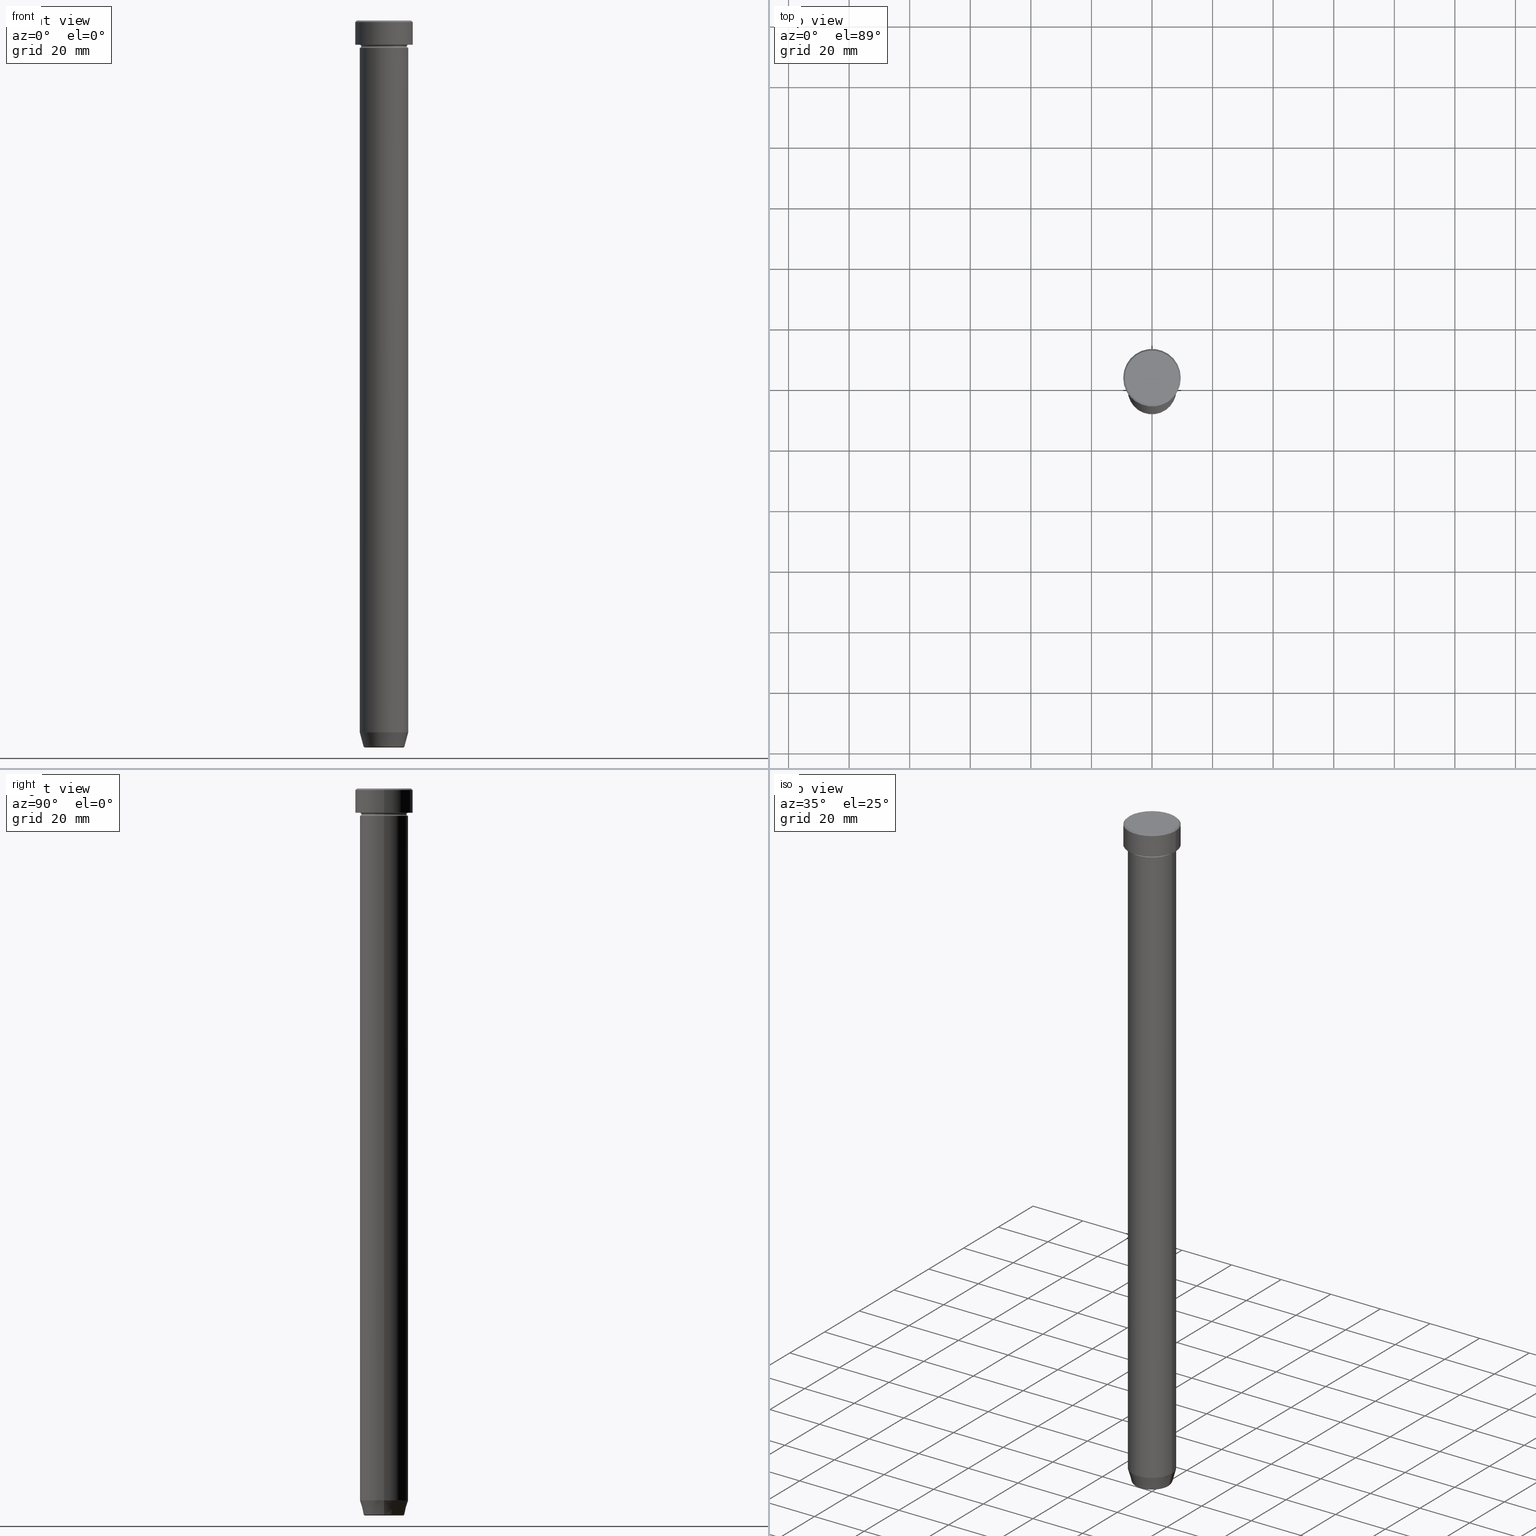
[diagram: canonical four-view strip — front | top / right | iso, engineering-drawing reading convention]
A machine part, canonical four-view strip (front | top / right | iso — engineering-drawing reading convention). The complete STEP part file that produces these views, byte-faithful:
ISO-10303-21;
HEADER;
FILE_DESCRIPTION (( 'STEP AP203' ),
    '1' );
FILE_NAME ('68c7.STEP',
    '2024-01-02T22:09:50',
    ( '' ),
    ( '' ),
    'SwSTEP 2.0',
    'SolidWorks 2019',
    '' );
FILE_SCHEMA (( 'CONFIG_CONTROL_DESIGN' ));
ENDSEC;

DATA;
#1 = VERTEX_POINT ( 'NONE', #226 ) ;
#2 = CC_DESIGN_APPROVAL ( #459, ( #292 ) ) ;
#3 = DIRECTION ( 'NONE',  ( 1.000000000000000000, 0.000000000000000000, 0.000000000000000000 ) ) ;
#4 = APPROVAL_ROLE ( '' ) ;
#5 = PLANE ( 'NONE',  #465 ) ;
#6 = CARTESIAN_POINT ( 'NONE',  ( 0.000000000000000000, 0.000000000000000000, 0.000000000000000000 ) ) ;
#7 = VERTEX_POINT ( 'NONE', #86 ) ;
#8 = DIRECTION ( 'NONE',  ( -0.000000000000000000, -0.000000000000000000, 1.000000000000000000 ) ) ;
#9 = DIRECTION ( 'NONE',  ( -0.000000000000000000, -1.000000000000000000, -0.000000000000000000 ) ) ;
#10 = CYLINDRICAL_SURFACE ( 'NONE', #85, 8.000000000000000000 ) ;
#11 = AXIS2_PLACEMENT_3D ( 'NONE', #394, #69, #343 ) ;
#12 = CIRCLE ( 'NONE', #361, 6.276590543854910997 ) ;
#13 = CARTESIAN_POINT ( 'NONE',  ( 9.000000000000001776, 1.132798289211301698E-15, 0.000000000000000000 ) ) ;
#14 = FACE_OUTER_BOUND ( 'NONE', #93, .T. ) ;
#15 = DIRECTION ( 'NONE',  ( -0.000000000000000000, -0.000000000000000000, 1.000000000000000000 ) ) ;
#16 = EDGE_LOOP ( 'NONE', ( #18, #34, #45, #541 ) ) ;
#17 = CARTESIAN_POINT ( 'NONE',  ( 6.276590543854910997, 0.000000000000000000, -240.0000000000000000 ) ) ;
#18 = ORIENTED_EDGE ( 'NONE', *, *, #358, .F. ) ;
#19 = DIRECTION ( 'NONE',  ( -0.000000000000000000, -0.000000000000000000, 1.000000000000000000 ) ) ;
#20 = CALENDAR_DATE ( 2024, 2, 1 ) ;
#21 = CC_DESIGN_PERSON_AND_ORGANIZATION_ASSIGNMENT ( #122, #31, ( #292 ) ) ;
#22 = CIRCLE ( 'NONE', #48, 0.5000000000000004441 ) ;
#23 = CARTESIAN_POINT ( 'NONE',  ( -9.500000000000000000, 1.163414459189985485E-15, -8.000000000000000000 ) ) ;
#24 = EDGE_CURVE ( 'NONE', #451, #228, #591, .T. ) ;
#25 = AXIS2_PLACEMENT_3D ( 'NONE', #513, #567, #335 ) ;
#26 = DIRECTION ( 'NONE',  ( -0.000000000000000000, -0.000000000000000000, 1.000000000000000000 ) ) ;
#27 = CIRCLE ( 'NONE', #277, 8.000000000000000000 ) ;
#28 = DIRECTION ( 'NONE',  ( -1.000000000000000000, 0.000000000000000000, 0.000000000000000000 ) ) ;
#29 = CARTESIAN_POINT ( 'NONE',  ( 0.000000000000000000, 2.326828918379971286E-14, -240.0000000000000000 ) ) ;
#30 = DIRECTION ( 'NONE',  ( -0.2588190451025202954, 3.169619151431758778E-17, 0.9659258262890684232 ) ) ;
#31 = PERSON_AND_ORGANIZATION_ROLE ( 'classification_officer' ) ;
#32 = CARTESIAN_POINT ( 'NONE',  ( 8.000000000000000000, 9.797174393178825657E-16, -8.000000000000000000 ) ) ;
#33 =( NAMED_UNIT ( * ) SI_UNIT ( $, .STERADIAN. ) SOLID_ANGLE_UNIT ( ) );
#34 = ORIENTED_EDGE ( 'NONE', *, *, #140, .F. ) ;
#35 = DIRECTION ( 'NONE',  ( 1.000000000000000000, 0.000000000000000000, 0.000000000000000000 ) ) ;
#36 = ADVANCED_FACE ( 'NONE', ( #263 ), #515, .F. ) ;
#37 = DIRECTION ( 'NONE',  ( -0.000000000000000000, -0.000000000000000000, 1.000000000000000000 ) ) ;
#38 = FACE_OUTER_BOUND ( 'NONE', #180, .T. ) ;
#39 = EDGE_LOOP ( 'NONE', ( #151, #416, #363, #597 ) ) ;
#40 = LINE ( 'NONE', #452, #414 ) ;
#41 = LOCAL_TIME ( 23, 9, 50.00000000000000000, #529 ) ;
#42 = PLANE ( 'NONE',  #545 ) ;
#43 = ORIENTED_EDGE ( 'NONE', *, *, #229, .F. ) ;
#44 = CARTESIAN_POINT ( 'NONE',  ( 0.000000000000000000, 0.000000000000000000, 0.000000000000000000 ) ) ;
#45 = ORIENTED_EDGE ( 'NONE', *, *, #422, .T. ) ;
#46 = PRODUCT_DEFINITION ( 'NEZN�M�', '', #322, #132 ) ;
#47 = VERTEX_POINT ( 'NONE', #32 ) ;
#48 = AXIS2_PLACEMENT_3D ( 'NONE', #204, #386, #520 ) ;
#49 = ADVANCED_BREP_SHAPE_REPRESENTATION ( '68c7', ( #123, #514, #521 ), #105 ) ;
#50 = DIRECTION ( 'NONE',  ( 0.000000000000000000, 0.000000000000000000, -1.000000000000000000 ) ) ;
#51 = AXIS2_PLACEMENT_3D ( 'NONE', #152, #516, #212 ) ;
#52 = TOROIDAL_SURFACE ( 'NONE', #484, 8.000000000000000000, 0.5000000000000000000 ) ;
#53 = ORIENTED_EDGE ( 'NONE', *, *, #342, .T. ) ;
#54 = CYLINDRICAL_SURFACE ( 'NONE', #71, 8.000000000000000000 ) ;
#55 = DIRECTION ( 'NONE',  ( 1.000000000000000000, 0.000000000000000000, 0.000000000000000000 ) ) ;
#56 = EDGE_LOOP ( 'NONE', ( #246, #143, #321, #43 ) ) ;
#57 = APPLICATION_PROTOCOL_DEFINITION ( 'international standard', 'config_control_design', 1994, #275 ) ;
#58 = VERTEX_POINT ( 'NONE', #304 ) ;
#59 = AXIS2_PLACEMENT_3D ( 'NONE', #280, #522, #339 ) ;
#60 = CARTESIAN_POINT ( 'NONE',  ( 0.000000000000000000, 0.000000000000000000, -240.0000000000000000 ) ) ;
#61 = APPROVAL_STATUS ( 'not_yet_approved' ) ;
#62 =( NAMED_UNIT ( * ) PLANE_ANGLE_UNIT ( ) SI_UNIT ( $, .RADIAN. ) );
#63 = EDGE_CURVE ( 'NONE', #200, #228, #40, .T. ) ;
#64 = CARTESIAN_POINT ( 'NONE',  ( -8.000000000000000000, 0.000000000000000000, -8.500000000000000000 ) ) ;
#65 = DIRECTION ( 'NONE',  ( 0.000000000000000000, 0.000000000000000000, -1.000000000000000000 ) ) ;
#66 = AXIS2_PLACEMENT_3D ( 'NONE', #289, #389, #383 ) ;
#67 = CARTESIAN_POINT ( 'NONE',  ( -8.000000000000000000, 9.797174393178825657E-16, -8.500000000000000000 ) ) ;
#68 = PRODUCT_DEFINITION_SHAPE ( 'NONE', 'NONE',  #46 ) ;
#69 = DIRECTION ( 'NONE',  ( -0.000000000000000000, -0.000000000000000000, 1.000000000000000000 ) ) ;
#70 = AXIS2_PLACEMENT_3D ( 'NONE', #396, #347, #261 ) ;
#71 = AXIS2_PLACEMENT_3D ( 'NONE', #186, #192, #188 ) ;
#72 = CARTESIAN_POINT ( 'NONE',  ( 8.000000000000000000, 0.000000000000000000, -22.00000000000000000 ) ) ;
#73 = EDGE_CURVE ( 'NONE', #7, #47, #75, .T. ) ;
#74 = CARTESIAN_POINT ( 'NONE',  ( 0.000000000000000000, 0.000000000000000000, 0.000000000000000000 ) ) ;
#75 = CIRCLE ( 'NONE', #206, 8.000000000000000000 ) ;
#76 = CARTESIAN_POINT ( 'NONE',  ( -6.660254037844388186, 8.156458788954364706E-16, -240.0000000000000000 ) ) ;
#77 = AXIS2_PLACEMENT_3D ( 'NONE', #365, #552, #96 ) ;
#78 = DIRECTION ( 'NONE',  ( 1.000000000000000000, 0.000000000000000000, 0.000000000000000000 ) ) ;
#79 = ORIENTED_EDGE ( 'NONE', *, *, #73, .F. ) ;
#80 = PRODUCT_RELATED_PRODUCT_CATEGORY ( 'detail', '', ( #395 ) ) ;
#81 = ORIENTED_EDGE ( 'NONE', *, *, #140, .T. ) ;
#82 = CARTESIAN_POINT ( 'NONE',  ( -9.500000000000000000, 1.163414459189985485E-15, -0.4999999999999968914 ) ) ;
#83 = EDGE_LOOP ( 'NONE', ( #81, #427 ) ) ;
#84 = DIRECTION ( 'NONE',  ( 1.000000000000000000, 0.000000000000000000, 0.000000000000000000 ) ) ;
#85 = AXIS2_PLACEMENT_3D ( 'NONE', #198, #15, #435 ) ;
#86 = CARTESIAN_POINT ( 'NONE',  ( -8.000000000000000000, 0.000000000000000000, -8.000000000000000000 ) ) ;
#87 = EDGE_CURVE ( 'NONE', #183, #565, #540, .T. ) ;
#88 = ORIENTED_EDGE ( 'NONE', *, *, #274, .T. ) ;
#89 = VERTEX_POINT ( 'NONE', #593 ) ;
#90 = DIRECTION ( 'NONE',  ( -1.000000000000000000, 0.000000000000000000, -0.000000000000000000 ) ) ;
#91 = ORIENTED_EDGE ( 'NONE', *, *, #415, .T. ) ;
#92 = DIRECTION ( 'NONE',  ( -0.000000000000000000, -0.000000000000000000, 1.000000000000000000 ) ) ;
#93 = EDGE_LOOP ( 'NONE', ( #536, #556 ) ) ;
#94 = AXIS2_PLACEMENT_3D ( 'NONE', #352, #538, #265 ) ;
#95 = EDGE_CURVE ( 'NONE', #89, #442, #295, .T. ) ;
#96 = DIRECTION ( 'NONE',  ( 1.000000000000000000, 0.000000000000000000, 0.000000000000000000 ) ) ;
#97 = ORIENTED_EDGE ( 'NONE', *, *, #319, .F. ) ;
#98 = CARTESIAN_POINT ( 'NONE',  ( -8.000000000000000000, 9.797174393178825657E-16, -22.00000000000000000 ) ) ;
#99 = PERSON_AND_ORGANIZATION ( #371, #182 ) ;
#100 = ORIENTED_EDGE ( 'NONE', *, *, #392, .T. ) ;
#101 = ADVANCED_FACE ( 'NONE', ( #14 ), #512, .T. ) ;
#102 = CC_DESIGN_PERSON_AND_ORGANIZATION_ASSIGNMENT ( #476, #208, ( #322 ) ) ;
#103 = AXIS2_PLACEMENT_3D ( 'NONE', #589, #586, #171 ) ;
#104 = CALENDAR_DATE ( 2024, 2, 1 ) ;
#105 =( GEOMETRIC_REPRESENTATION_CONTEXT ( 3 ) GLOBAL_UNCERTAINTY_ASSIGNED_CONTEXT ( ( #402 ) ) GLOBAL_UNIT_ASSIGNED_CONTEXT ( ( #189, #62, #33 ) ) REPRESENTATION_CONTEXT ( 'NONE', 'WORKASPACE' ) );
#106 = DIRECTION ( 'NONE',  ( -0.000000000000000000, -0.000000000000000000, 1.000000000000000000 ) ) ;
#107 = DIRECTION ( 'NONE',  ( 0.000000000000000000, -1.000000000000000000, 0.000000000000000000 ) ) ;
#108 = DIRECTION ( 'NONE',  ( -0.000000000000000000, -0.000000000000000000, 1.000000000000000000 ) ) ;
#109 = CARTESIAN_POINT ( 'NONE',  ( 0.000000000000000000, 0.000000000000000000, -8.000000000000000000 ) ) ;
#110 = ADVANCED_FACE ( 'NONE', ( #470 ), #356, .T. ) ;
#111 = EDGE_LOOP ( 'NONE', ( #425, #327, #432, #239 ) ) ;
#112 = CARTESIAN_POINT ( 'NONE',  ( 0.000000000000000000, 0.000000000000000000, -8.000000000000000000 ) ) ;
#113 = DIRECTION ( 'NONE',  ( -0.000000000000000000, -0.000000000000000000, 1.000000000000000000 ) ) ;
#114 = APPROVAL ( #283, 'NEUR�EN�' ) ;
#115 = DIRECTION ( 'NONE',  ( -0.000000000000000000, -0.000000000000000000, 1.000000000000000000 ) ) ;
#116 = AXIS2_PLACEMENT_3D ( 'NONE', #443, #37, #449 ) ;
#117 = AXIS2_PLACEMENT_3D ( 'NONE', #577, #92, #35 ) ;
#118 = FACE_OUTER_BOUND ( 'NONE', #333, .T. ) ;
#119 = DIRECTION ( 'NONE',  ( 1.000000000000000000, 0.000000000000000000, 0.000000000000000000 ) ) ;
#120 = CIRCLE ( 'NONE', #240, 6.276590543854910997 ) ;
#121 = LINE ( 'NONE', #590, #419 ) ;
#122 = PERSON_AND_ORGANIZATION ( #371, #182 ) ;
#123 = MANIFOLD_SOLID_BREP ( 'Zkosen�1', #317 ) ;
#124 = VECTOR ( 'NONE', #332, 1000.000000000000000 ) ;
#125 = AXIS2_PLACEMENT_3D ( 'NONE', #6, #367, #373 ) ;
#126 = DIRECTION ( 'NONE',  ( 1.000000000000000000, 0.000000000000000000, 0.000000000000000000 ) ) ;
#127 = VERTEX_POINT ( 'NONE', #72 ) ;
#128 = CARTESIAN_POINT ( 'NONE',  ( 0.000000000000000000, 0.000000000000000000, 0.000000000000000000 ) ) ;
#129 = CARTESIAN_POINT ( 'NONE',  ( 0.000000000000000000, 0.000000000000000000, -0.4999999999999968914 ) ) ;
#130 = DIRECTION ( 'NONE',  ( -0.000000000000000000, -0.000000000000000000, 1.000000000000000000 ) ) ;
#131 = CC_DESIGN_PERSON_AND_ORGANIZATION_ASSIGNMENT ( #169, #527, ( #322 ) ) ;
#132 = DESIGN_CONTEXT ( 'detailed design', #168, 'design' ) ;
#133 = ORIENTED_EDGE ( 'NONE', *, *, #301, .T. ) ;
#134 = CIRCLE ( 'NONE', #159, 8.000000000000000000 ) ;
#135 = EDGE_CURVE ( 'NONE', #442, #47, #22, .T. ) ;
#136 = AXIS2_PLACEMENT_3D ( 'NONE', #67, #160, #197 ) ;
#137 = EDGE_LOOP ( 'NONE', ( #544, #584 ) ) ;
#138 = ORIENTED_EDGE ( 'NONE', *, *, #599, .T. ) ;
#139 = PERSON_AND_ORGANIZATION_ROLE ( 'design_owner' ) ;
#140 = EDGE_CURVE ( 'NONE', #173, #1, #120, .T. ) ;
#141 = CIRCLE ( 'NONE', #472, 8.000000000000000000 ) ;
#142 = TOROIDAL_SURFACE ( 'NONE', #308, 6.276590543854910997, 0.5000000000000000000 ) ;
#143 = ORIENTED_EDGE ( 'NONE', *, *, #412, .T. ) ;
#144 = CALENDAR_DATE ( 2024, 2, 1 ) ;
#145 = ORIENTED_EDGE ( 'NONE', *, *, #447, .T. ) ;
#146 = DATE_TIME_ROLE ( 'creation_date' ) ;
#147 = CARTESIAN_POINT ( 'NONE',  ( 8.000000000000000000, 0.000000000000000000, 0.000000000000000000 ) ) ;
#148 = ORIENTED_EDGE ( 'NONE', *, *, #135, .T. ) ;
#149 = DIRECTION ( 'NONE',  ( -0.000000000000000000, -0.000000000000000000, 1.000000000000000000 ) ) ;
#150 = VECTOR ( 'NONE', #30, 999.9999999999998863 ) ;
#151 = ORIENTED_EDGE ( 'NONE', *, *, #274, .F. ) ;
#152 = CARTESIAN_POINT ( 'NONE',  ( 8.000000000000000000, 0.000000000000000000, -8.500000000000000000 ) ) ;
#153 = ORIENTED_EDGE ( 'NONE', *, *, #338, .F. ) ;
#154 = EDGE_CURVE ( 'NONE', #565, #58, #479, .T. ) ;
#155 = ADVANCED_FACE ( 'NONE', ( #38 ), #397, .T. ) ;
#156 = ORIENTED_EDGE ( 'NONE', *, *, #555, .T. ) ;
#157 = FACE_OUTER_BOUND ( 'NONE', #16, .T. ) ;
#158 = APPROVAL_ROLE ( '' ) ;
#159 = AXIS2_PLACEMENT_3D ( 'NONE', #305, #296, #78 ) ;
#160 = DIRECTION ( 'NONE',  ( 1.224646799147353207E-16, 1.000000000000000000, 0.000000000000000000 ) ) ;
#161 = DIRECTION ( 'NONE',  ( 1.000000000000000000, 0.000000000000000000, 0.000000000000000000 ) ) ;
#162 = CARTESIAN_POINT ( 'NONE',  ( 0.000000000000000000, 0.000000000000000000, -240.0000000000000000 ) ) ;
#163 = APPROVAL_STATUS ( 'not_yet_approved' ) ;
#164 = ADVANCED_FACE ( 'NONE', ( #409 ), #271, .T. ) ;
#165 = ORIENTED_EDGE ( 'NONE', *, *, #385, .F. ) ;
#166 = LOCAL_TIME ( 23, 9, 50.00000000000000000, #178 ) ;
#167 = DIRECTION ( 'NONE',  ( -0.000000000000000000, -0.000000000000000000, 1.000000000000000000 ) ) ;
#168 = APPLICATION_CONTEXT ( 'configuration controlled 3d designs of mechanical parts and assemblies' ) ;
#169 = PERSON_AND_ORGANIZATION ( #371, #182 ) ;
#170 = ADVANCED_FACE ( 'NONE', ( #431 ), #10, .T. ) ;
#171 = DIRECTION ( 'NONE',  ( 1.000000000000000000, 0.000000000000000000, 0.000000000000000000 ) ) ;
#172 = DIRECTION ( 'NONE',  ( -0.000000000000000000, -0.000000000000000000, 1.000000000000000000 ) ) ;
#173 = VERTEX_POINT ( 'NONE', #17 ) ;
#174 = ORIENTED_EDGE ( 'NONE', *, *, #24, .T. ) ;
#175 = CARTESIAN_POINT ( 'NONE',  ( 0.000000000000000000, 0.000000000000000000, 0.000000000000000000 ) ) ;
#176 = AXIS2_PLACEMENT_3D ( 'NONE', #517, #115, #473 ) ;
#177 = CARTESIAN_POINT ( 'NONE',  ( 0.000000000000000000, 0.000000000000000000, -8.000000000000000000 ) ) ;
#178 = COORDINATED_UNIVERSAL_TIME_OFFSET ( 1, 0, .AHEAD. ) ;
#179 = AXIS2_PLACEMENT_3D ( 'NONE', #254, #205, #475 ) ;
#180 = EDGE_LOOP ( 'NONE', ( #97, #579, #287, #306 ) ) ;
#181 = AXIS2_PLACEMENT_3D ( 'NONE', #128, #488, #28 ) ;
#182 = ORGANIZATION ( 'NEUR�EN�', 'NEUR�EN�', '' ) ;
#183 = VERTEX_POINT ( 'NONE', #387 ) ;
#184 = ORIENTED_EDGE ( 'NONE', *, *, #456, .T. ) ;
#185 = ADVANCED_FACE ( 'NONE', ( #157 ), #594, .T. ) ;
#186 = CARTESIAN_POINT ( 'NONE',  ( 0.000000000000000000, 0.000000000000000000, 0.000000000000000000 ) ) ;
#187 = ORIENTED_EDGE ( 'NONE', *, *, #585, .F. ) ;
#188 = DIRECTION ( 'NONE',  ( 1.000000000000000000, 0.000000000000000000, 0.000000000000000000 ) ) ;
#189 =( LENGTH_UNIT ( ) NAMED_UNIT ( * ) SI_UNIT ( .MILLI., .METRE. ) );
#190 = VERTEX_POINT ( 'NONE', #13 ) ;
#191 = AXIS2_PLACEMENT_3D ( 'NONE', #44, #167, #225 ) ;
#192 = DIRECTION ( 'NONE',  ( -0.000000000000000000, -0.000000000000000000, 1.000000000000000000 ) ) ;
#193 = EDGE_CURVE ( 'NONE', #127, #362, #196, .T. ) ;
#194 = DIRECTION ( 'NONE',  ( -0.000000000000000000, -0.000000000000000000, 1.000000000000000000 ) ) ;
#195 = DIRECTION ( 'NONE',  ( -0.000000000000000000, -0.000000000000000000, 1.000000000000000000 ) ) ;
#196 = LINE ( 'NONE', #468, #124 ) ;
#197 = DIRECTION ( 'NONE',  ( -1.000000000000000000, 1.224646799147353454E-16, 0.000000000000000000 ) ) ;
#198 = CARTESIAN_POINT ( 'NONE',  ( 0.000000000000000000, 0.000000000000000000, 0.000000000000000000 ) ) ;
#199 = CC_DESIGN_APPROVAL ( #481, ( #46 ) ) ;
#200 = VERTEX_POINT ( 'NONE', #23 ) ;
#201 = CARTESIAN_POINT ( 'NONE',  ( -8.000000000000000000, 9.797174393178825657E-16, 0.000000000000000000 ) ) ;
#202 = EDGE_CURVE ( 'NONE', #281, #200, #454, .T. ) ;
#203 = EDGE_LOOP ( 'NONE', ( #533, #218 ) ) ;
#204 = CARTESIAN_POINT ( 'NONE',  ( 8.000000000000000000, 9.797174393178825657E-16, -8.500000000000000000 ) ) ;
#205 = DIRECTION ( 'NONE',  ( 1.224646799147353207E-16, 1.000000000000000000, 0.000000000000000000 ) ) ;
#206 = AXIS2_PLACEMENT_3D ( 'NONE', #177, #530, #410 ) ;
#207 = DIRECTION ( 'NONE',  ( 1.000000000000000000, 0.000000000000000000, 0.000000000000000000 ) ) ;
#208 = PERSON_AND_ORGANIZATION_ROLE ( 'design_supplier' ) ;
#209 = DATE_AND_TIME ( #20, #257 ) ;
#210 = AXIS2_PLACEMENT_3D ( 'NONE', #64, #9, #378 ) ;
#211 = EDGE_CURVE ( 'NONE', #442, #362, #483, .T. ) ;
#212 = DIRECTION ( 'NONE',  ( 0.000000000000000000, 0.000000000000000000, -1.000000000000000000 ) ) ;
#213 = COORDINATED_UNIVERSAL_TIME_OFFSET ( 1, 0, .AHEAD. ) ;
#214 = DIRECTION ( 'NONE',  ( -0.000000000000000000, -0.000000000000000000, 1.000000000000000000 ) ) ;
#215 = ORIENTED_EDGE ( 'NONE', *, *, #211, .F. ) ;
#216 = FACE_OUTER_BOUND ( 'NONE', #355, .T. ) ;
#217 = DATE_AND_TIME ( #346, #41 ) ;
#218 = ORIENTED_EDGE ( 'NONE', *, *, #599, .F. ) ;
#219 = EDGE_CURVE ( 'NONE', #450, #228, #446, .T. ) ;
#220 = ORIENTED_EDGE ( 'NONE', *, *, #63, .T. ) ;
#221 = AXIS2_PLACEMENT_3D ( 'NONE', #29, #260, #84 ) ;
#222 = AXIS2_PLACEMENT_3D ( 'NONE', #74, #19, #245 ) ;
#223 = DIRECTION ( 'NONE',  ( 0.000000000000000000, 0.000000000000000000, -1.000000000000000000 ) ) ;
#224 = EDGE_LOOP ( 'NONE', ( #364, #148, #79, #153 ) ) ;
#225 = DIRECTION ( 'NONE',  ( 1.000000000000000000, 0.000000000000000000, 0.000000000000000000 ) ) ;
#226 = CARTESIAN_POINT ( 'NONE',  ( -6.276590543854910997, 7.982336011935131202E-16, -240.0000000000000000 ) ) ;
#227 = ORIENTED_EDGE ( 'NONE', *, *, #202, .T. ) ;
#228 = VERTEX_POINT ( 'NONE', #82 ) ;
#229 = EDGE_CURVE ( 'NONE', #523, #561, #581, .T. ) ;
#230 = AXIS2_PLACEMENT_3D ( 'NONE', #330, #113, #344 ) ;
#231 = ADVANCED_FACE ( 'NONE', ( #482 ), #368, .F. ) ;
#232 = PERSON_AND_ORGANIZATION ( #371, #182 ) ;
#233 = DIRECTION ( 'NONE',  ( -1.000000000000000000, 0.000000000000000000, -0.000000000000000000 ) ) ;
#234 = DIRECTION ( 'NONE',  ( -0.000000000000000000, -0.000000000000000000, 1.000000000000000000 ) ) ;
#235 = ORIENTED_EDGE ( 'NONE', *, *, #447, .F. ) ;
#236 = CC_DESIGN_DATE_AND_TIME_ASSIGNMENT ( #506, #146, ( #46 ) ) ;
#237 = PERSON_AND_ORGANIZATION_ROLE ( 'creator' ) ;
#238 = CALENDAR_DATE ( 2024, 2, 1 ) ;
#239 = ORIENTED_EDGE ( 'NONE', *, *, #24, .F. ) ;
#240 = AXIS2_PLACEMENT_3D ( 'NONE', #162, #340, #119 ) ;
#241 = EDGE_CURVE ( 'NONE', #190, #451, #401, .T. ) ;
#242 = DIRECTION ( 'NONE',  ( 0.000000000000000000, 0.000000000000000000, -1.000000000000000000 ) ) ;
#243 = SHAPE_DEFINITION_REPRESENTATION ( #68, #49 ) ;
#244 = FACE_OUTER_BOUND ( 'NONE', #406, .T. ) ;
#245 = DIRECTION ( 'NONE',  ( 1.000000000000000000, 0.000000000000000000, 0.000000000000000000 ) ) ;
#246 = ORIENTED_EDGE ( 'NONE', *, *, #415, .F. ) ;
#247 = EDGE_CURVE ( 'NONE', #495, #127, #141, .T. ) ;
#248 = CARTESIAN_POINT ( 'NONE',  ( 9.500000000000000000, 0.000000000000000000, -0.4999999999999968914 ) ) ;
#249 = ADVANCED_FACE ( 'NONE', ( #575 ), #539, .F. ) ;
#250 = VECTOR ( 'NONE', #471, 1000.000000000000000 ) ;
#251 = LINE ( 'NONE', #259, #266 ) ;
#252 = LINE ( 'NONE', #201, #250 ) ;
#253 = CARTESIAN_POINT ( 'NONE',  ( 0.000000000000000000, 0.000000000000000000, -239.5000000000000000 ) ) ;
#254 = CARTESIAN_POINT ( 'NONE',  ( -6.276590543854910997, 7.686606519090461831E-16, -239.5000000000000000 ) ) ;
#255 = APPROVAL_DATE_TIME ( #209, #481 ) ;
#256 = VECTOR ( 'NONE', #478, 999.9999999999998863 ) ;
#257 = LOCAL_TIME ( 23, 9, 50.00000000000000000, #294 ) ;
#258 = CIRCLE ( 'NONE', #440, 9.500000000000000000 ) ;
#259 = CARTESIAN_POINT ( 'NONE',  ( -8.000000000000000000, 9.797174393178825657E-16, 0.000000000000000000 ) ) ;
#260 = DIRECTION ( 'NONE',  ( 0.000000000000000000, -0.000000000000000000, 1.000000000000000000 ) ) ;
#261 = DIRECTION ( 'NONE',  ( -1.000000000000000000, 0.000000000000000000, 0.000000000000000000 ) ) ;
#262 = EDGE_CURVE ( 'NONE', #281, #451, #121, .T. ) ;
#263 = FACE_OUTER_BOUND ( 'NONE', #569, .T. ) ;
#264 = ORIENTED_EDGE ( 'NONE', *, *, #87, .F. ) ;
#265 = DIRECTION ( 'NONE',  ( 1.000000000000000000, 0.000000000000000000, 0.000000000000000000 ) ) ;
#266 = VECTOR ( 'NONE', #382, 1000.000000000000000 ) ;
#267 = LOCAL_TIME ( 23, 9, 50.00000000000000000, #558 ) ;
#268 = DIRECTION ( 'NONE',  ( 1.000000000000000000, 0.000000000000000000, 0.000000000000000000 ) ) ;
#269 = DIRECTION ( 'NONE',  ( 1.000000000000000000, 0.000000000000000000, 0.000000000000000000 ) ) ;
#270 = EDGE_LOOP ( 'NONE', ( #312, #357, #430, #336 ) ) ;
#271 = CYLINDRICAL_SURFACE ( 'NONE', #11, 9.500000000000000000 ) ;
#272 = DIRECTION ( 'NONE',  ( -1.000000000000000000, 0.000000000000000000, 0.000000000000000000 ) ) ;
#273 = ORIENTED_EDGE ( 'NONE', *, *, #135, .F. ) ;
#274 = EDGE_CURVE ( 'NONE', #190, #450, #438, .T. ) ;
#275 = APPLICATION_CONTEXT ( 'configuration controlled 3d designs of mechanical parts and assemblies' ) ;
#276 = AXIS2_PLACEMENT_3D ( 'NONE', #253, #108, #161 ) ;
#277 = AXIS2_PLACEMENT_3D ( 'NONE', #109, #532, #272 ) ;
#278 = CARTESIAN_POINT ( 'NONE',  ( -8.000000000000000000, 9.797174393178825657E-16, -9.000000000000001776 ) ) ;
#279 = EDGE_CURVE ( 'NONE', #485, #362, #134, .T. ) ;
#280 = CARTESIAN_POINT ( 'NONE',  ( 0.000000000000000000, 0.000000000000000000, -235.0000000000000000 ) ) ;
#281 = VERTEX_POINT ( 'NONE', #302 ) ;
#282 = AXIS2_PLACEMENT_3D ( 'NONE', #310, #149, #329 ) ;
#283 = APPROVAL_STATUS ( 'not_yet_approved' ) ;
#284 = CIRCLE ( 'NONE', #117, 8.000000000000000000 ) ;
#285 = APPROVAL_DATE_TIME ( #507, #459 ) ;
#286 = CARTESIAN_POINT ( 'NONE',  ( -8.000000000000000000, 9.797174393178825657E-16, -22.00000000000000000 ) ) ;
#287 = ORIENTED_EDGE ( 'NONE', *, *, #193, .T. ) ;
#288 = DIRECTION ( 'NONE',  ( -0.000000000000000000, -0.000000000000000000, 1.000000000000000000 ) ) ;
#289 = CARTESIAN_POINT ( 'NONE',  ( 0.000000000000000000, 8.000000000000000000, -22.00000000000000000 ) ) ;
#290 = CARTESIAN_POINT ( 'NONE',  ( 8.000000000000000000, 0.000000000000000000, -9.000000000000001776 ) ) ;
#291 = AXIS2_PLACEMENT_3D ( 'NONE', #578, #528, #268 ) ;
#292 = SECURITY_CLASSIFICATION ( '', '', #441 ) ;
#293 = EDGE_CURVE ( 'NONE', #450, #190, #553, .T. ) ;
#294 = COORDINATED_UNIVERSAL_TIME_OFFSET ( 1, 0, .AHEAD. ) ;
#295 = CIRCLE ( 'NONE', #282, 7.500000000000000000 ) ;
#296 = DIRECTION ( 'NONE',  ( -0.000000000000000000, -0.000000000000000000, 1.000000000000000000 ) ) ;
#297 = FACE_BOUND ( 'NONE', #137, .T. ) ;
#298 = CIRCLE ( 'NONE', #510, 8.000000000000000000 ) ;
#299 = DIRECTION ( 'NONE',  ( 0.7071067811865489050, 8.659560562354950115E-17, -0.7071067811865462405 ) ) ;
#300 = ORIENTED_EDGE ( 'NONE', *, *, #537, .F. ) ;
#301 = EDGE_CURVE ( 'NONE', #384, #58, #426, .T. ) ;
#302 = CARTESIAN_POINT ( 'NONE',  ( 9.500000000000000000, 0.000000000000000000, -8.000000000000000000 ) ) ;
#303 = DIRECTION ( 'NONE',  ( 1.000000000000000000, 0.000000000000000000, 0.000000000000000000 ) ) ;
#304 = CARTESIAN_POINT ( 'NONE',  ( -8.000000000000000000, 9.797174393178825657E-16, -235.0000000000000000 ) ) ;
#305 = CARTESIAN_POINT ( 'NONE',  ( 0.000000000000000000, 0.000000000000000000, -9.000000000000001776 ) ) ;
#306 = ORIENTED_EDGE ( 'NONE', *, *, #279, .F. ) ;
#307 = CIRCLE ( 'NONE', #25, 7.500000000000000000 ) ;
#308 = AXIS2_PLACEMENT_3D ( 'NONE', #381, #195, #524 ) ;
#309 = EDGE_LOOP ( 'NONE', ( #496, #88 ) ) ;
#310 = CARTESIAN_POINT ( 'NONE',  ( 0.000000000000000000, 0.000000000000000000, -8.500000000000000000 ) ) ;
#311 = ADVANCED_FACE ( 'NONE', ( #216 ), #580, .T. ) ;
#312 = ORIENTED_EDGE ( 'NONE', *, *, #87, .T. ) ;
#313 = ORIENTED_EDGE ( 'NONE', *, *, #348, .T. ) ;
#314 = DIRECTION ( 'NONE',  ( 0.000000000000000000, 0.000000000000000000, 1.000000000000000000 ) ) ;
#315 = ADVANCED_FACE ( 'NONE', ( #534 ), #519, .T. ) ;
#316 = LINE ( 'NONE', #147, #407 ) ;
#317 = CLOSED_SHELL ( 'NONE', ( #315, #231, #583, #170, #164, #101, #467, #372, #388, #155, #429, #36, #564 ) ) ;
#318 = CARTESIAN_POINT ( 'NONE',  ( 0.000000000000000000, 0.000000000000000000, -22.00000000000000000 ) ) ;
#319 = EDGE_CURVE ( 'NONE', #495, #485, #251, .T. ) ;
#320 = AXIS2_PLACEMENT_3D ( 'NONE', #437, #26, #408 ) ;
#321 = ORIENTED_EDGE ( 'NONE', *, *, #585, .T. ) ;
#322 = PRODUCT_DEFINITION_FORMATION_WITH_SPECIFIED_SOURCE ( 'LIBOVOLN�', '', #395, .NOT_KNOWN. ) ;
#323 = FACE_OUTER_BOUND ( 'NONE', #549, .T. ) ;
#324 = FACE_OUTER_BOUND ( 'NONE', #588, .T. ) ;
#325 = EDGE_LOOP ( 'NONE', ( #464, #551, #156, #504 ) ) ;
#326 = ORIENTED_EDGE ( 'NONE', *, *, #422, .F. ) ;
#327 = ORIENTED_EDGE ( 'NONE', *, *, #293, .F. ) ;
#328 = DIRECTION ( 'NONE',  ( -0.000000000000000000, -0.000000000000000000, 1.000000000000000000 ) ) ;
#329 = DIRECTION ( 'NONE',  ( 1.000000000000000000, 0.000000000000000000, 0.000000000000000000 ) ) ;
#330 = CARTESIAN_POINT ( 'NONE',  ( 0.000000000000000000, 0.000000000000000000, -239.6294095225512422 ) ) ;
#331 = ADVANCED_FACE ( 'NONE', ( #466 ), #573, .T. ) ;
#332 = DIRECTION ( 'NONE',  ( -0.000000000000000000, -0.000000000000000000, 1.000000000000000000 ) ) ;
#333 = EDGE_LOOP ( 'NONE', ( #300, #411, #264, #326 ) ) ;
#334 = CARTESIAN_POINT ( 'NONE',  ( -9.000000000000001776, 0.000000000000000000, 0.000000000000000000 ) ) ;
#335 = DIRECTION ( 'NONE',  ( 1.000000000000000000, 0.000000000000000000, 0.000000000000000000 ) ) ;
#336 = ORIENTED_EDGE ( 'NONE', *, *, #555, .F. ) ;
#337 = FACE_OUTER_BOUND ( 'NONE', #433, .T. ) ;
#338 = EDGE_CURVE ( 'NONE', #89, #7, #492, .T. ) ;
#339 = DIRECTION ( 'NONE',  ( 1.000000000000000000, 0.000000000000000000, 0.000000000000000000 ) ) ;
#340 = DIRECTION ( 'NONE',  ( 0.000000000000000000, 0.000000000000000000, -1.000000000000000000 ) ) ;
#341 = CC_DESIGN_SECURITY_CLASSIFICATION ( #292, ( #322 ) ) ;
#342 = EDGE_CURVE ( 'NONE', #442, #89, #307, .T. ) ;
#343 = DIRECTION ( 'NONE',  ( 1.000000000000000000, 0.000000000000000000, 0.000000000000000000 ) ) ;
#344 = DIRECTION ( 'NONE',  ( -1.000000000000000000, 0.000000000000000000, 0.000000000000000000 ) ) ;
#345 = CARTESIAN_POINT ( 'NONE',  ( 0.000000000000000000, 0.000000000000000000, -22.00000000000000000 ) ) ;
#346 = CALENDAR_DATE ( 2024, 2, 1 ) ;
#347 = DIRECTION ( 'NONE',  ( 0.000000000000000000, 0.000000000000000000, -1.000000000000000000 ) ) ;
#348 = EDGE_CURVE ( 'NONE', #362, #485, #360, .T. ) ;
#349 = CARTESIAN_POINT ( 'NONE',  ( -9.000000000000001776, 0.000000000000000000, 0.000000000000000000 ) ) ;
#350 = DIRECTION ( 'NONE',  ( -0.000000000000000000, -0.000000000000000000, 1.000000000000000000 ) ) ;
#351 = ORIENTED_EDGE ( 'NONE', *, *, #229, .T. ) ;
#352 = CARTESIAN_POINT ( 'NONE',  ( 0.000000000000000000, 0.000000000000000000, 0.000000000000000000 ) ) ;
#353 = DIRECTION ( 'NONE',  ( 1.000000000000000000, 0.000000000000000000, 0.000000000000000000 ) ) ;
#354 = DIRECTION ( 'NONE',  ( -1.000000000000000000, 0.000000000000000000, 0.000000000000000000 ) ) ;
#355 = EDGE_LOOP ( 'NONE', ( #133, #91, #369, #187 ) ) ;
#356 = CONICAL_SURFACE ( 'NONE', #176, 6.660254037844388186, 0.2617993877991489082 ) ;
#357 = ORIENTED_EDGE ( 'NONE', *, *, #154, .T. ) ;
#358 = EDGE_CURVE ( 'NONE', #1, #565, #439, .T. ) ;
#359 = DIRECTION ( 'NONE',  ( 0.000000000000000000, 0.000000000000000000, -1.000000000000000000 ) ) ;
#360 = CIRCLE ( 'NONE', #103, 8.000000000000000000 ) ;
#361 = AXIS2_PLACEMENT_3D ( 'NONE', #376, #242, #3 ) ;
#362 = VERTEX_POINT ( 'NONE', #290 ) ;
#363 = ORIENTED_EDGE ( 'NONE', *, *, #398, .F. ) ;
#364 = ORIENTED_EDGE ( 'NONE', *, *, #95, .T. ) ;
#365 = CARTESIAN_POINT ( 'NONE',  ( 0.000000000000000000, 0.000000000000000000, -0.4999999999999968914 ) ) ;
#366 = EDGE_CURVE ( 'NONE', #565, #183, #508, .T. ) ;
#367 = DIRECTION ( 'NONE',  ( 0.000000000000000000, 0.000000000000000000, -1.000000000000000000 ) ) ;
#368 = TOROIDAL_SURFACE ( 'NONE', #70, 8.000000000000000000, 0.5000000000000000000 ) ;
#369 = ORIENTED_EDGE ( 'NONE', *, *, #392, .F. ) ;
#370 = LOCAL_TIME ( 23, 9, 50.00000000000000000, #213 ) ;
#371 = PERSON ( 'NEUR�EN�', 'NEUR�EN�', 'NEUR�EN�', ('NEUR�EN�'), ('NEUR�EN�'), ('NEUR�EN�') ) ;
#372 = ADVANCED_FACE ( 'NONE', ( #337 ), #518, .T. ) ;
#373 = DIRECTION ( 'NONE',  ( -1.000000000000000000, 0.000000000000000000, 0.000000000000000000 ) ) ;
#374 = LINE ( 'NONE', #557, #420 ) ;
#375 = CLOSED_SHELL ( 'NONE', ( #413, #110, #311, #489, #500, #331, #249, #185 ) ) ;
#376 = CARTESIAN_POINT ( 'NONE',  ( 0.000000000000000000, 0.000000000000000000, -240.0000000000000000 ) ) ;
#377 = AXIS2_PLACEMENT_3D ( 'NONE', #175, #350, #303 ) ;
#378 = DIRECTION ( 'NONE',  ( 0.000000000000000000, 0.000000000000000000, -1.000000000000000000 ) ) ;
#379 = TOROIDAL_SURFACE ( 'NONE', #448, 8.000000000000000000, 0.5000000000000000000 ) ;
#380 = ORIENTED_EDGE ( 'NONE', *, *, #262, .F. ) ;
#381 = CARTESIAN_POINT ( 'NONE',  ( 0.000000000000000000, 0.000000000000000000, -239.5000000000000000 ) ) ;
#382 = DIRECTION ( 'NONE',  ( -0.000000000000000000, -0.000000000000000000, 1.000000000000000000 ) ) ;
#383 = DIRECTION ( 'NONE',  ( -1.000000000000000000, 0.000000000000000000, -0.000000000000000000 ) ) ;
#384 = VERTEX_POINT ( 'NONE', #525 ) ;
#385 = EDGE_CURVE ( 'NONE', #47, #7, #27, .T. ) ;
#386 = DIRECTION ( 'NONE',  ( -1.224646799147353207E-16, 1.000000000000000000, 0.000000000000000000 ) ) ;
#387 = CARTESIAN_POINT ( 'NONE',  ( 6.759553456999448429, 0.000000000000000000, -239.6294095225512422 ) ) ;
#388 = ADVANCED_FACE ( 'NONE', ( #297, #404 ), #42, .T. ) ;
#389 = DIRECTION ( 'NONE',  ( 0.000000000000000000, 0.000000000000000000, -1.000000000000000000 ) ) ;
#390 = AXIS2_PLACEMENT_3D ( 'NONE', #487, #526, #126 ) ;
#391 = CIRCLE ( 'NONE', #136, 0.5000000000000004441 ) ;
#392 = EDGE_CURVE ( 'NONE', #561, #523, #298, .T. ) ;
#393 = DIRECTION ( 'NONE',  ( -0.000000000000000000, -0.000000000000000000, 1.000000000000000000 ) ) ;
#394 = CARTESIAN_POINT ( 'NONE',  ( 0.000000000000000000, 0.000000000000000000, 0.000000000000000000 ) ) ;
#395 = PRODUCT ( '68c7', '68c7', '', ( #543 ) ) ;
#396 = CARTESIAN_POINT ( 'NONE',  ( 0.000000000000000000, 0.000000000000000000, -8.500000000000000000 ) ) ;
#397 = CYLINDRICAL_SURFACE ( 'NONE', #377, 8.000000000000000000 ) ;
#398 = EDGE_CURVE ( 'NONE', #228, #451, #502, .T. ) ;
#399 = ORIENTED_EDGE ( 'NONE', *, *, #262, .T. ) ;
#400 = PLANE ( 'NONE',  #94 ) ;
#401 = LINE ( 'NONE', #491, #405 ) ;
#402 = UNCERTAINTY_MEASURE_WITH_UNIT (LENGTH_MEASURE( 1.000000000000000082E-05 ), #189, 'distance_accuracy_value', 'NONE');
#403 = APPROVAL_DATE_TIME ( #217, #114 ) ;
#404 = FACE_OUTER_BOUND ( 'NONE', #203, .T. ) ;
#405 = VECTOR ( 'NONE', #299, 999.9999999999998863 ) ;
#406 = EDGE_LOOP ( 'NONE', ( #235, #444, #592, #313 ) ) ;
#407 = VECTOR ( 'NONE', #106, 1000.000000000000000 ) ;
#408 = DIRECTION ( 'NONE',  ( 1.000000000000000000, 0.000000000000000000, 0.000000000000000000 ) ) ;
#409 = FACE_OUTER_BOUND ( 'NONE', #498, .T. ) ;
#410 = DIRECTION ( 'NONE',  ( -1.000000000000000000, 0.000000000000000000, 0.000000000000000000 ) ) ;
#411 = ORIENTED_EDGE ( 'NONE', *, *, #358, .T. ) ;
#412 = EDGE_CURVE ( 'NONE', #58, #384, #595, .T. ) ;
#413 = ADVANCED_FACE ( 'NONE', ( #118 ), #142, .T. ) ;
#414 = VECTOR ( 'NONE', #214, 1000.000000000000000 ) ;
#415 = EDGE_CURVE ( 'NONE', #58, #523, #252, .T. ) ;
#416 = ORIENTED_EDGE ( 'NONE', *, *, #241, .T. ) ;
#417 = DIRECTION ( 'NONE',  ( -1.000000000000000000, 0.000000000000000000, 0.000000000000000000 ) ) ;
#418 = ORIENTED_EDGE ( 'NONE', *, *, #319, .T. ) ;
#419 = VECTOR ( 'NONE', #130, 1000.000000000000000 ) ;
#420 = VECTOR ( 'NONE', #570, 999.9999999999998863 ) ;
#421 = CARTESIAN_POINT ( 'NONE',  ( 0.000000000000000000, 0.000000000000000000, 0.000000000000000000 ) ) ;
#422 = EDGE_CURVE ( 'NONE', #173, #183, #563, .T. ) ;
#423 = CARTESIAN_POINT ( 'NONE',  ( 0.000000000000000000, 0.000000000000000000, -8.000000000000000000 ) ) ;
#424 = DATE_AND_TIME ( #238, #370 ) ;
#425 = ORIENTED_EDGE ( 'NONE', *, *, #241, .F. ) ;
#426 = CIRCLE ( 'NONE', #116, 8.000000000000000000 ) ;
#427 = ORIENTED_EDGE ( 'NONE', *, *, #537, .T. ) ;
#428 = FACE_OUTER_BOUND ( 'NONE', #111, .T. ) ;
#429 = ADVANCED_FACE ( 'NONE', ( #244 ), #379, .F. ) ;
#430 = ORIENTED_EDGE ( 'NONE', *, *, #301, .F. ) ;
#431 = FACE_OUTER_BOUND ( 'NONE', #493, .T. ) ;
#432 = ORIENTED_EDGE ( 'NONE', *, *, #219, .T. ) ;
#433 = EDGE_LOOP ( 'NONE', ( #445, #138, #399, #174 ) ) ;
#434 = DIRECTION ( 'NONE',  ( 0.000000000000000000, 0.000000000000000000, -1.000000000000000000 ) ) ;
#435 = DIRECTION ( 'NONE',  ( 1.000000000000000000, 0.000000000000000000, 0.000000000000000000 ) ) ;
#436 = CARTESIAN_POINT ( 'NONE',  ( 6.276590543854910997, 0.000000000000000000, -239.5000000000000000 ) ) ;
#437 = CARTESIAN_POINT ( 'NONE',  ( 0.000000000000000000, 0.000000000000000000, -22.00000000000000000 ) ) ;
#438 = CIRCLE ( 'NONE', #390, 9.000000000000001776 ) ;
#439 = CIRCLE ( 'NONE', #179, 0.5000000000000004441 ) ;
#440 = AXIS2_PLACEMENT_3D ( 'NONE', #423, #234, #55 ) ;
#441 = SECURITY_CLASSIFICATION_LEVEL ( 'unclassified' ) ;
#442 = VERTEX_POINT ( 'NONE', #572 ) ;
#443 = CARTESIAN_POINT ( 'NONE',  ( 0.000000000000000000, 0.000000000000000000, -235.0000000000000000 ) ) ;
#444 = ORIENTED_EDGE ( 'NONE', *, *, #342, .F. ) ;
#445 = ORIENTED_EDGE ( 'NONE', *, *, #63, .F. ) ;
#446 = LINE ( 'NONE', #349, #256 ) ;
#447 = EDGE_CURVE ( 'NONE', #89, #485, #391, .T. ) ;
#448 = AXIS2_PLACEMENT_3D ( 'NONE', #566, #8, #207 ) ;
#449 = DIRECTION ( 'NONE',  ( 1.000000000000000000, 0.000000000000000000, 0.000000000000000000 ) ) ;
#450 = VERTEX_POINT ( 'NONE', #334 ) ;
#451 = VERTEX_POINT ( 'NONE', #248 ) ;
#452 = CARTESIAN_POINT ( 'NONE',  ( -9.500000000000000000, 1.163414459189985485E-15, 0.000000000000000000 ) ) ;
#453 = CARTESIAN_POINT ( 'NONE',  ( 0.000000000000000000, 9.500000000000000000, -8.000000000000000000 ) ) ;
#454 = CIRCLE ( 'NONE', #499, 9.500000000000000000 ) ;
#455 = CONICAL_SURFACE ( 'NONE', #125, 9.000000000000001776, 0.7853981633974501664 ) ;
#456 = EDGE_CURVE ( 'NONE', #127, #495, #284, .T. ) ;
#457 = CARTESIAN_POINT ( 'NONE',  ( 0.000000000000000000, 0.000000000000000000, -8.500000000000000000 ) ) ;
#458 = AXIS2_PLACEMENT_3D ( 'NONE', #582, #359, #417 ) ;
#459 = APPROVAL ( #61, 'NEUR�EN�' ) ;
#460 = FACE_OUTER_BOUND ( 'NONE', #56, .T. ) ;
#461 = APPROVAL_ROLE ( '' ) ;
#462 = CARTESIAN_POINT ( 'NONE',  ( -6.759553456999448429, 9.037619948979312129E-16, -239.6294095225512422 ) ) ;
#463 = AXIS2_PLACEMENT_3D ( 'NONE', #60, #328, #511 ) ;
#464 = ORIENTED_EDGE ( 'NONE', *, *, #154, .F. ) ;
#465 = AXIS2_PLACEMENT_3D ( 'NONE', #501, #65, #233 ) ;
#466 = FACE_OUTER_BOUND ( 'NONE', #325, .T. ) ;
#467 = ADVANCED_FACE ( 'NONE', ( #486 ), #400, .T. ) ;
#468 = CARTESIAN_POINT ( 'NONE',  ( 8.000000000000000000, 0.000000000000000000, 0.000000000000000000 ) ) ;
#469 = AXIS2_PLACEMENT_3D ( 'NONE', #587, #172, #354 ) ;
#470 = FACE_OUTER_BOUND ( 'NONE', #270, .T. ) ;
#471 = DIRECTION ( 'NONE',  ( -0.000000000000000000, -0.000000000000000000, 1.000000000000000000 ) ) ;
#472 = AXIS2_PLACEMENT_3D ( 'NONE', #345, #393, #353 ) ;
#473 = DIRECTION ( 'NONE',  ( 1.000000000000000000, 0.000000000000000000, 0.000000000000000000 ) ) ;
#474 = APPROVAL_PERSON_ORGANIZATION ( #99, #114, #461 ) ;
#475 = DIRECTION ( 'NONE',  ( -1.000000000000000000, 1.224646799147351482E-16, 0.000000000000000000 ) ) ;
#476 = PERSON_AND_ORGANIZATION ( #371, #182 ) ;
#477 = CARTESIAN_POINT ( 'NONE',  ( 8.000000000000000000, 0.000000000000000000, -22.00000000000000000 ) ) ;
#478 = DIRECTION ( 'NONE',  ( -0.7071067811865489050, 0.000000000000000000, -0.7071067811865462405 ) ) ;
#479 = LINE ( 'NONE', #76, #150 ) ;
#480 = APPLICATION_PROTOCOL_DEFINITION ( 'international standard', 'config_control_design', 1994, #168 ) ;
#481 = APPROVAL ( #163, 'NEUR�EN�' ) ;
#482 = FACE_OUTER_BOUND ( 'NONE', #224, .T. ) ;
#483 = CIRCLE ( 'NONE', #51, 0.5000000000000004441 ) ;
#484 = AXIS2_PLACEMENT_3D ( 'NONE', #457, #194, #550 ) ;
#485 = VERTEX_POINT ( 'NONE', #278 ) ;
#486 = FACE_OUTER_BOUND ( 'NONE', #309, .T. ) ;
#487 = CARTESIAN_POINT ( 'NONE',  ( 0.000000000000000000, 0.000000000000000000, 0.000000000000000000 ) ) ;
#488 = DIRECTION ( 'NONE',  ( 0.000000000000000000, 0.000000000000000000, -1.000000000000000000 ) ) ;
#489 = ADVANCED_FACE ( 'NONE', ( #323 ), #5, .F. ) ;
#490 = ORIENTED_EDGE ( 'NONE', *, *, #398, .T. ) ;
#491 = CARTESIAN_POINT ( 'NONE',  ( 9.000000000000001776, 1.102182119232617911E-15, 0.000000000000000000 ) ) ;
#492 = CIRCLE ( 'NONE', #210, 0.5000000000000004441 ) ;
#493 = EDGE_LOOP ( 'NONE', ( #184, #418, #542, #596 ) ) ;
#494 = APPROVAL_PERSON_ORGANIZATION ( #562, #459, #4 ) ;
#495 = VERTEX_POINT ( 'NONE', #286 ) ;
#496 = ORIENTED_EDGE ( 'NONE', *, *, #293, .T. ) ;
#497 = DIRECTION ( 'NONE',  ( 1.000000000000000000, 0.000000000000000000, 0.000000000000000000 ) ) ;
#498 = EDGE_LOOP ( 'NONE', ( #227, #220, #490, #380 ) ) ;
#499 = AXIS2_PLACEMENT_3D ( 'NONE', #112, #288, #568 ) ;
#500 = ADVANCED_FACE ( 'NONE', ( #460 ), #54, .T. ) ;
#501 = CARTESIAN_POINT ( 'NONE',  ( 0.000000000000000000, 0.000000000000000000, -22.00000000000000000 ) ) ;
#502 = CIRCLE ( 'NONE', #77, 9.500000000000000000 ) ;
#503 = DIRECTION ( 'NONE',  ( -0.000000000000000000, -0.000000000000000000, 1.000000000000000000 ) ) ;
#504 = ORIENTED_EDGE ( 'NONE', *, *, #412, .F. ) ;
#505 = CC_DESIGN_DATE_AND_TIME_ASSIGNMENT ( #424, #560, ( #292 ) ) ;
#506 = DATE_AND_TIME ( #144, #166 ) ;
#507 = DATE_AND_TIME ( #104, #267 ) ;
#508 = CIRCLE ( 'NONE', #230, 6.759553456999447540 ) ;
#509 = APPROVAL_PERSON_ORGANIZATION ( #574, #481, #158 ) ;
#510 = AXIS2_PLACEMENT_3D ( 'NONE', #318, #503, #598 ) ;
#511 = DIRECTION ( 'NONE',  ( 1.000000000000000000, 0.000000000000000000, 0.000000000000000000 ) ) ;
#512 = PLANE ( 'NONE',  #66 ) ;
#513 = CARTESIAN_POINT ( 'NONE',  ( 0.000000000000000000, 0.000000000000000000, -8.500000000000000000 ) ) ;
#514 = MANIFOLD_SOLID_BREP ( 'Zaoblit4', #375 ) ;
#515 = TOROIDAL_SURFACE ( 'NONE', #458, 8.000000000000000000, 0.5000000000000000000 ) ;
#516 = DIRECTION ( 'NONE',  ( 0.000000000000000000, -1.000000000000000000, 0.000000000000000000 ) ) ;
#517 = CARTESIAN_POINT ( 'NONE',  ( 0.000000000000000000, 0.000000000000000000, -240.0000000000000000 ) ) ;
#518 = CYLINDRICAL_SURFACE ( 'NONE', #222, 9.500000000000000000 ) ;
#519 = CONICAL_SURFACE ( 'NONE', #181, 9.000000000000001776, 0.7853981633974501664 ) ;
#520 = DIRECTION ( 'NONE',  ( -1.000000000000000000, -1.224646799147353454E-16, 0.000000000000000000 ) ) ;
#521 = AXIS2_PLACEMENT_3D ( 'NONE', #421, #314, #497 ) ;
#522 = DIRECTION ( 'NONE',  ( -0.000000000000000000, -0.000000000000000000, 1.000000000000000000 ) ) ;
#523 = VERTEX_POINT ( 'NONE', #98 ) ;
#524 = DIRECTION ( 'NONE',  ( 1.000000000000000000, 0.000000000000000000, 0.000000000000000000 ) ) ;
#525 = CARTESIAN_POINT ( 'NONE',  ( 8.000000000000000000, 0.000000000000000000, -235.0000000000000000 ) ) ;
#526 = DIRECTION ( 'NONE',  ( -0.000000000000000000, -0.000000000000000000, 1.000000000000000000 ) ) ;
#527 = PERSON_AND_ORGANIZATION_ROLE ( 'creator' ) ;
#528 = DIRECTION ( 'NONE',  ( -0.000000000000000000, -0.000000000000000000, 1.000000000000000000 ) ) ;
#529 = COORDINATED_UNIVERSAL_TIME_OFFSET ( 1, 0, .AHEAD. ) ;
#530 = DIRECTION ( 'NONE',  ( -0.000000000000000000, -0.000000000000000000, 1.000000000000000000 ) ) ;
#531 = AXIS2_PLACEMENT_3D ( 'NONE', #436, #107, #434 ) ;
#532 = DIRECTION ( 'NONE',  ( -0.000000000000000000, -0.000000000000000000, 1.000000000000000000 ) ) ;
#533 = ORIENTED_EDGE ( 'NONE', *, *, #202, .F. ) ;
#534 = FACE_OUTER_BOUND ( 'NONE', #39, .T. ) ;
#535 = ORIENTED_EDGE ( 'NONE', *, *, #338, .T. ) ;
#536 = ORIENTED_EDGE ( 'NONE', *, *, #456, .F. ) ;
#537 = EDGE_CURVE ( 'NONE', #1, #173, #12, .T. ) ;
#538 = DIRECTION ( 'NONE',  ( 0.000000000000000000, -0.000000000000000000, 1.000000000000000000 ) ) ;
#539 = PLANE ( 'NONE',  #221 ) ;
#540 = CIRCLE ( 'NONE', #469, 6.759553456999447540 ) ;
#541 = ORIENTED_EDGE ( 'NONE', *, *, #366, .F. ) ;
#542 = ORIENTED_EDGE ( 'NONE', *, *, #348, .F. ) ;
#543 = MECHANICAL_CONTEXT ( 'NONE', #275, 'mechanical' ) ;
#544 = ORIENTED_EDGE ( 'NONE', *, *, #73, .T. ) ;
#545 = AXIS2_PLACEMENT_3D ( 'NONE', #453, #50, #90 ) ;
#546 = ORIENTED_EDGE ( 'NONE', *, *, #95, .F. ) ;
#547 = CC_DESIGN_PERSON_AND_ORGANIZATION_ASSIGNMENT ( #232, #139, ( #395 ) ) ;
#548 = ORIENTED_EDGE ( 'NONE', *, *, #279, .T. ) ;
#549 = EDGE_LOOP ( 'NONE', ( #100, #351 ) ) ;
#550 = DIRECTION ( 'NONE',  ( 1.000000000000000000, 0.000000000000000000, 0.000000000000000000 ) ) ;
#551 = ORIENTED_EDGE ( 'NONE', *, *, #366, .T. ) ;
#552 = DIRECTION ( 'NONE',  ( 0.000000000000000000, 0.000000000000000000, -1.000000000000000000 ) ) ;
#553 = CIRCLE ( 'NONE', #291, 9.000000000000001776 ) ;
#554 = CC_DESIGN_APPROVAL ( #114, ( #322 ) ) ;
#555 = EDGE_CURVE ( 'NONE', #183, #384, #374, .T. ) ;
#556 = ORIENTED_EDGE ( 'NONE', *, *, #247, .F. ) ;
#557 = CARTESIAN_POINT ( 'NONE',  ( 6.660254037844388186, 0.000000000000000000, -240.0000000000000000 ) ) ;
#558 = COORDINATED_UNIVERSAL_TIME_OFFSET ( 1, 0, .AHEAD. ) ;
#559 = AXIS2_PLACEMENT_3D ( 'NONE', #129, #223, #269 ) ;
#560 = DATE_TIME_ROLE ( 'classification_date' ) ;
#561 = VERTEX_POINT ( 'NONE', #477 ) ;
#562 = PERSON_AND_ORGANIZATION ( #371, #182 ) ;
#563 = CIRCLE ( 'NONE', #531, 0.5000000000000004441 ) ;
#564 = ADVANCED_FACE ( 'NONE', ( #428 ), #455, .T. ) ;
#565 = VERTEX_POINT ( 'NONE', #462 ) ;
#566 = CARTESIAN_POINT ( 'NONE',  ( 0.000000000000000000, 0.000000000000000000, -8.500000000000000000 ) ) ;
#567 = DIRECTION ( 'NONE',  ( -0.000000000000000000, -0.000000000000000000, 1.000000000000000000 ) ) ;
#568 = DIRECTION ( 'NONE',  ( 1.000000000000000000, 0.000000000000000000, 0.000000000000000000 ) ) ;
#569 = EDGE_LOOP ( 'NONE', ( #273, #53, #535, #165 ) ) ;
#570 = DIRECTION ( 'NONE',  ( 0.2588190451025202954, 0.000000000000000000, 0.9659258262890684232 ) ) ;
#571 = CC_DESIGN_PERSON_AND_ORGANIZATION_ASSIGNMENT ( #576, #237, ( #46 ) ) ;
#572 = CARTESIAN_POINT ( 'NONE',  ( 7.500000000000000000, 0.000000000000000000, -8.500000000000000000 ) ) ;
#573 = CONICAL_SURFACE ( 'NONE', #463, 6.660254037844388186, 0.2617993877991489082 ) ;
#574 = PERSON_AND_ORGANIZATION ( #371, #182 ) ;
#575 = FACE_OUTER_BOUND ( 'NONE', #83, .T. ) ;
#576 = PERSON_AND_ORGANIZATION ( #371, #182 ) ;
#577 = CARTESIAN_POINT ( 'NONE',  ( 0.000000000000000000, 0.000000000000000000, -22.00000000000000000 ) ) ;
#578 = CARTESIAN_POINT ( 'NONE',  ( 0.000000000000000000, 0.000000000000000000, 0.000000000000000000 ) ) ;
#579 = ORIENTED_EDGE ( 'NONE', *, *, #247, .T. ) ;
#580 = CYLINDRICAL_SURFACE ( 'NONE', #191, 8.000000000000000000 ) ;
#581 = CIRCLE ( 'NONE', #320, 8.000000000000000000 ) ;
#582 = CARTESIAN_POINT ( 'NONE',  ( 0.000000000000000000, 0.000000000000000000, -8.500000000000000000 ) ) ;
#583 = ADVANCED_FACE ( 'NONE', ( #324 ), #52, .F. ) ;
#584 = ORIENTED_EDGE ( 'NONE', *, *, #385, .T. ) ;
#585 = EDGE_CURVE ( 'NONE', #384, #561, #316, .T. ) ;
#586 = DIRECTION ( 'NONE',  ( -0.000000000000000000, -0.000000000000000000, 1.000000000000000000 ) ) ;
#587 = CARTESIAN_POINT ( 'NONE',  ( 0.000000000000000000, 0.000000000000000000, -239.6294095225512422 ) ) ;
#588 = EDGE_LOOP ( 'NONE', ( #546, #145, #548, #215 ) ) ;
#589 = CARTESIAN_POINT ( 'NONE',  ( 0.000000000000000000, 0.000000000000000000, -9.000000000000001776 ) ) ;
#590 = CARTESIAN_POINT ( 'NONE',  ( 9.500000000000000000, 0.000000000000000000, 0.000000000000000000 ) ) ;
#591 = CIRCLE ( 'NONE', #559, 9.500000000000000000 ) ;
#592 = ORIENTED_EDGE ( 'NONE', *, *, #211, .T. ) ;
#593 = CARTESIAN_POINT ( 'NONE',  ( -7.500000000000000000, 9.491012693391985815E-16, -8.500000000000000000 ) ) ;
#594 = TOROIDAL_SURFACE ( 'NONE', #276, 6.276590543854910997, 0.5000000000000000000 ) ;
#595 = CIRCLE ( 'NONE', #59, 8.000000000000000000 ) ;
#596 = ORIENTED_EDGE ( 'NONE', *, *, #193, .F. ) ;
#597 = ORIENTED_EDGE ( 'NONE', *, *, #219, .F. ) ;
#598 = DIRECTION ( 'NONE',  ( 1.000000000000000000, 0.000000000000000000, 0.000000000000000000 ) ) ;
#599 = EDGE_CURVE ( 'NONE', #200, #281, #258, .T. ) ;
ENDSEC;
END-ISO-10303-21;
